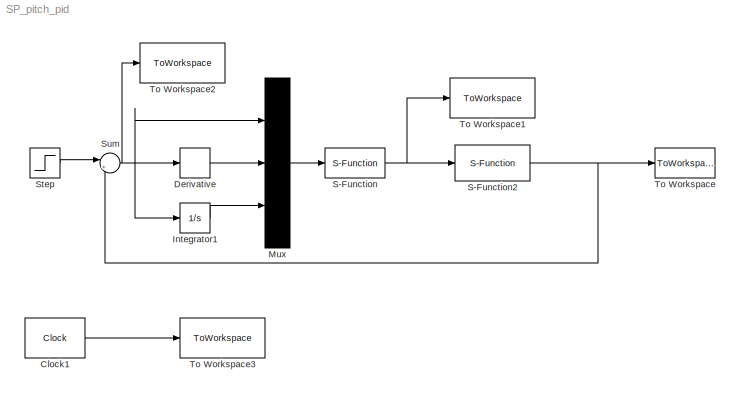
MODEL SP_pitch_pid
KIND model
BLOCK [Clock] Clock1
  Decimation = 1
  DisplayTime = on
  SID = 10
BLOCK [Derivative] Derivative
  SID = 16
BLOCK [Integrator] Integrator1
  Ports = [1, 1]
  SID = 15
BLOCK [Mux] Mux
  Inputs = 3
  Ports = [3, 1]
  SID = 17
BLOCK [S-Function] S-Function
  EnableBusSupport = off
  FunctionName = pitch_pid
  Ports = [1, 1]
  SID = 20
BLOCK [S-Function] S-Function2
  EnableBusSupport = off
  FunctionName = pitch_plant_pid
  Ports = [1, 1]
  SID = 19
BLOCK [Step] Step
  After = 0
  SID = 12
  SampleTime = 0
BLOCK [Sum] Sum
  IconShape = round
  InputSameDT = off
  Inputs = |+-
  OutDataTypeStr = Inherit: Inherit via internal rule
  Ports = [2, 1]
  SID = 13
  SaturateOnIntegerOverflow = off
BLOCK [ToWorkspace] To Workspace
  MaxDataPoints = inf
  Ports = [1]
  SID = 9
  SampleTime = -1
  VariableName = y1
BLOCK [ToWorkspace] To Workspace1
  MaxDataPoints = inf
  Ports = [1]
  SID = 22
  SampleTime = -1
  VariableName = e1
BLOCK [ToWorkspace] To Workspace2
  MaxDataPoints = inf
  Ports = [1]
  SID = 35
  SampleTime = -1
  VariableName = err
BLOCK [ToWorkspace] To Workspace3
  MaxDataPoints = inf
  Ports = [1]
  SID = 11
  SampleTime = -1
  VariableName = t1
LINE Clock1:1 -> To Workspace3:1
LINE Derivative:1 -> Mux:2
LINE Integrator1:1 -> Mux:3
LINE Mux:1 -> S-Function:1
NET S-Function2:1 -> Sum:2, To Workspace:1
NET S-Function:1 -> S-Function2:1, To Workspace1:1
LINE Step:1 -> Sum:1
NET Sum:1 -> Derivative:1, Integrator1:1, Mux:1, To Workspace2:1
note: NET lines group one-source signal fan-out (src -> all destinations, sorted); 1:1 wires keep LINE
